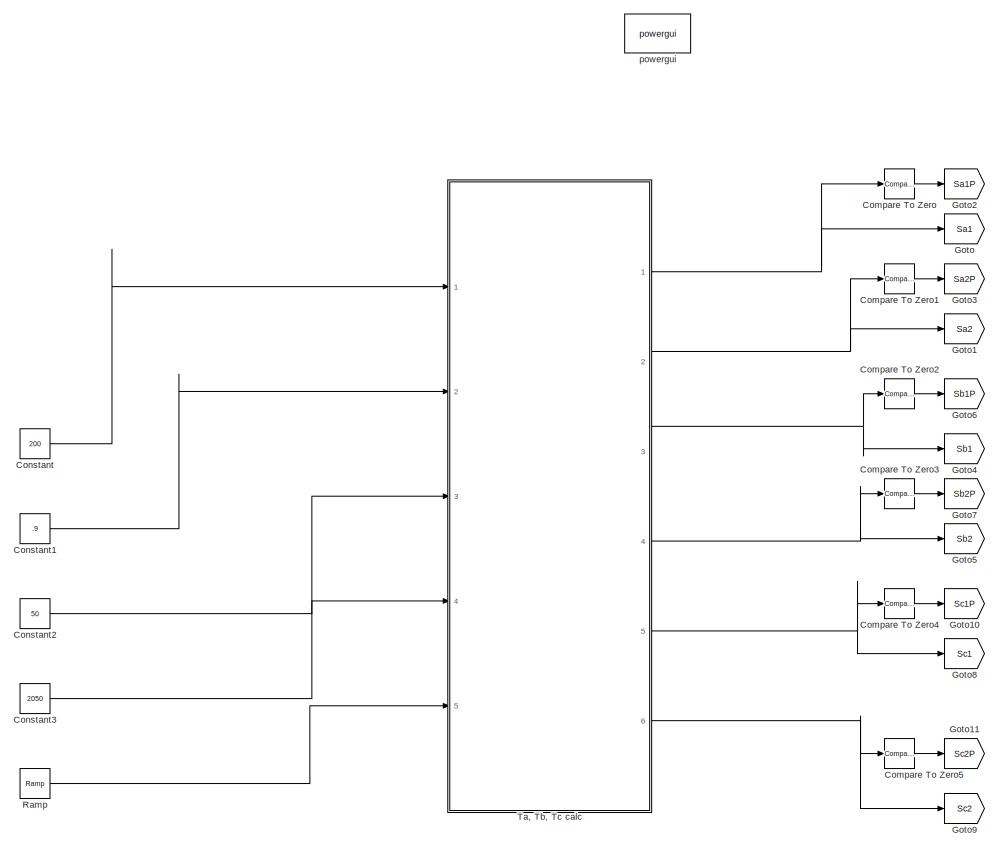
[diagram: root canvas - part 1/5, top left region]
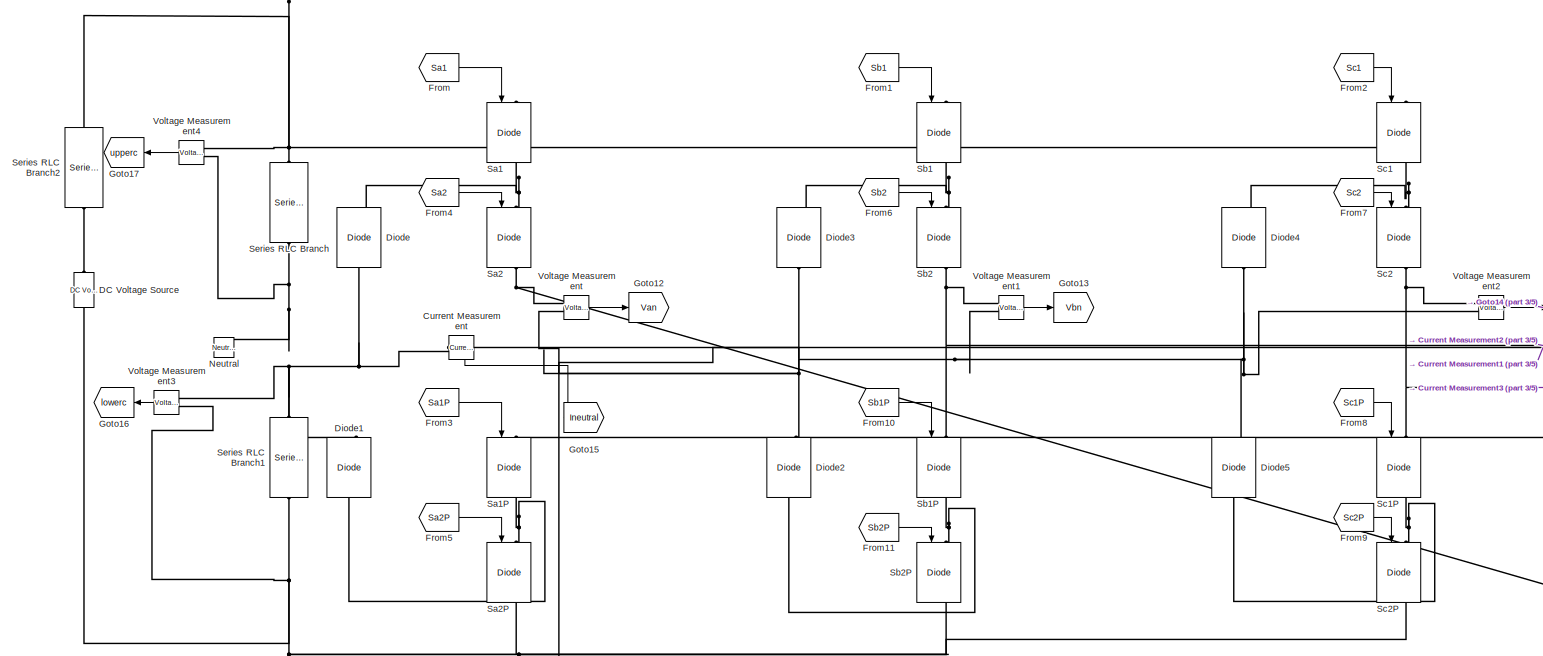
[diagram: root canvas - part 2/5, central region]
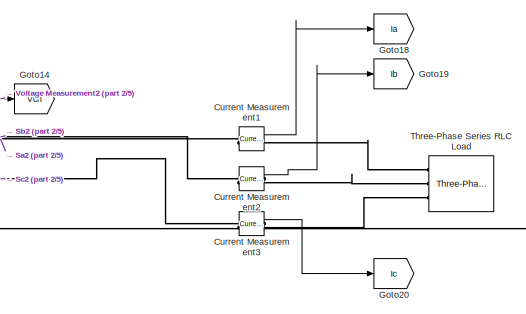
[diagram: root canvas - part 3/5, middle right region]
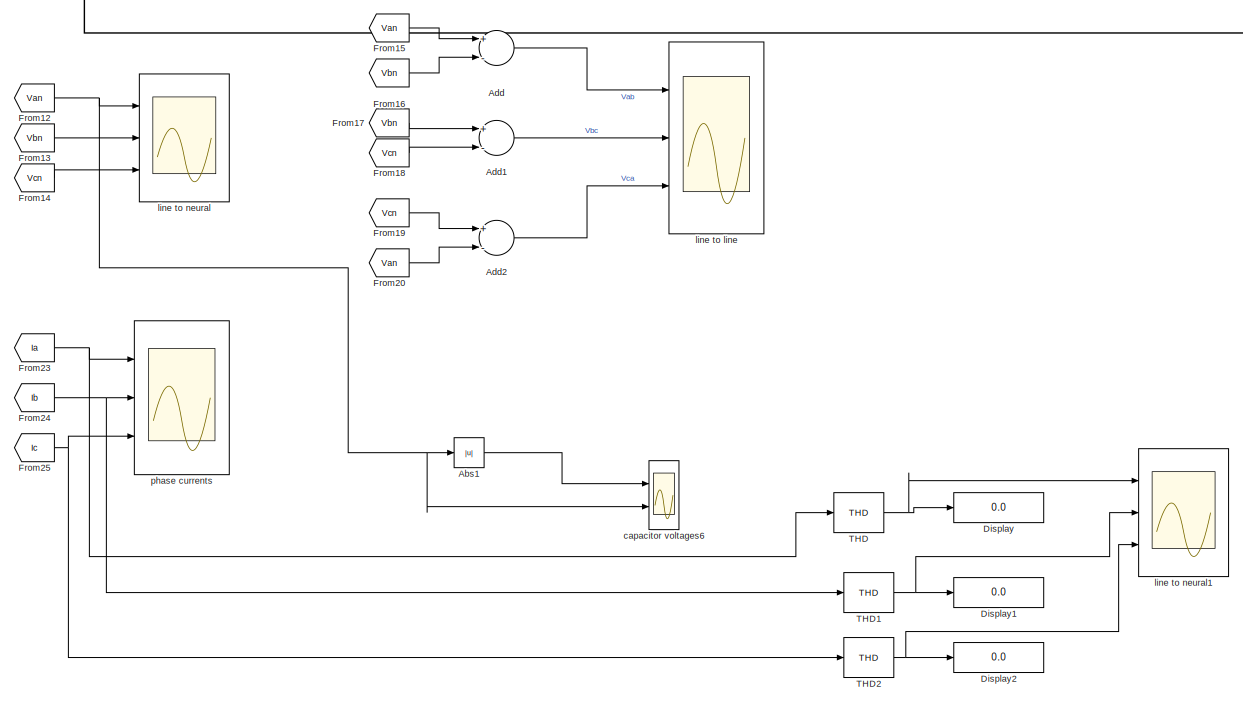
[diagram: root canvas - part 4/5, bottom center region]
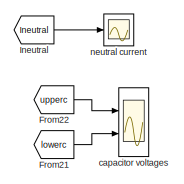
[diagram: root canvas - part 5/5, bottom center region]
MODEL slx_27b21fbd5ff9
KIND model
CONFIG AbsTol = auto
CONFIG FixedStep = auto
CONFIG MaxStep = auto
CONFIG MinStep = auto
CONFIG RelTol = 1e-3
CONFIG SampleTimeConstraint = Unconstrained
CONFIG Solver = VariableStepAuto
CONFIG SolverMode = Auto
CONFIG SolverName = VariableStepAuto
CONFIG StartTime = 0.0
CONFIG StopTime = 0.1
BLOCK [Abs] Abs1
  SaturateOnIntegerOverflow = off
BLOCK [Sum] Add
  InputSameDT = off
  Inputs = +-
  OutDataTypeStr = Inherit: Inherit via internal rule
  Ports = [2, 1]
  SaturateOnIntegerOverflow = off
BLOCK [Sum] Add1
  InputSameDT = off
  Inputs = +-
  OutDataTypeStr = Inherit: Inherit via internal rule
  Ports = [2, 1]
  SaturateOnIntegerOverflow = off
BLOCK [Sum] Add2
  InputSameDT = off
  Inputs = +-
  OutDataTypeStr = Inherit: Inherit via internal rule
  Ports = [2, 1]
  SaturateOnIntegerOverflow = off
BLOCK [Reference] Compare To Zero  REF=simulink/Logic and Bit
Operations/Compare
To Zero
  Ports = [1, 1]
  SourceBlock = simulink/Logic and Bit\nOperations/Compare\nTo Zero
  SourceType = Compare To Zero
BLOCK [Reference] Compare To Zero1  REF=simulink/Logic and Bit
Operations/Compare
To Zero
  Ports = [1, 1]
  SourceBlock = simulink/Logic and Bit\nOperations/Compare\nTo Zero
  SourceType = Compare To Zero
BLOCK [Reference] Compare To Zero2  REF=simulink/Logic and Bit
Operations/Compare
To Zero
  Ports = [1, 1]
  SourceBlock = simulink/Logic and Bit\nOperations/Compare\nTo Zero
  SourceType = Compare To Zero
BLOCK [Reference] Compare To Zero3  REF=simulink/Logic and Bit
Operations/Compare
To Zero
  Ports = [1, 1]
  SourceBlock = simulink/Logic and Bit\nOperations/Compare\nTo Zero
  SourceType = Compare To Zero
BLOCK [Reference] Compare To Zero4  REF=simulink/Logic and Bit
Operations/Compare
To Zero
  Ports = [1, 1]
  SourceBlock = simulink/Logic and Bit\nOperations/Compare\nTo Zero
  SourceType = Compare To Zero
BLOCK [Reference] Compare To Zero5  REF=simulink/Logic and Bit
Operations/Compare
To Zero
  Ports = [1, 1]
  SourceBlock = simulink/Logic and Bit\nOperations/Compare\nTo Zero
  SourceType = Compare To Zero
BLOCK [Constant] Constant
  Value = 200
BLOCK [Constant] Constant1
  Value = .9
BLOCK [Constant] Constant2
  Value = 50
BLOCK [Constant] Constant3
  Value = 2050
  VectorParams1D = off
BLOCK [Reference] Current Measurement  REF=powerlib/Measurements/Current Measurement
  Ports = [0, 1, 0, 0, 0, 1, 1]
  SourceBlock = powerlib/Measurements/Current Measurement
  SourceType = Current Measurement
  UserDataPersistent = on
BLOCK [Reference] Current Measurement1  REF=powerlib/Measurements/Current Measurement
  Ports = [0, 1, 0, 0, 0, 1, 1]
  SourceBlock = powerlib/Measurements/Current Measurement
  SourceType = Current Measurement
  UserDataPersistent = on
BLOCK [Reference] Current Measurement2  REF=powerlib/Measurements/Current Measurement
  Ports = [0, 1, 0, 0, 0, 1, 1]
  SourceBlock = powerlib/Measurements/Current Measurement
  SourceType = Current Measurement
  UserDataPersistent = on
BLOCK [Reference] Current Measurement3  REF=powerlib/Measurements/Current Measurement
  Ports = [0, 1, 0, 0, 0, 1, 1]
  SourceBlock = powerlib/Measurements/Current Measurement
  SourceType = Current Measurement
  UserDataPersistent = on
BLOCK [Reference] DC Voltage Source  REF=powerlib/Electrical
Sources/DC Voltage Source
  Ports = [0, 0, 0, 0, 0, 1, 1]
  SourceBlock = powerlib/Electrical\nSources/DC Voltage Source
  SourceType = DC Voltage Source
BLOCK [Reference] Diode  REF=powerlib/Power
Electronics/Diode
  Ports = [0, 1, 0, 0, 0, 1, 1]
  SourceBlock = powerlib/Power\nElectronics/Diode
  SourceType = Diode
BLOCK [Reference] Diode1  REF=powerlib/Power
Electronics/Diode
  Ports = [0, 1, 0, 0, 0, 1, 1]
  SourceBlock = powerlib/Power\nElectronics/Diode
  SourceType = Diode
BLOCK [Reference] Diode2  REF=powerlib/Power
Electronics/Diode
  Ports = [0, 1, 0, 0, 0, 1, 1]
  SourceBlock = powerlib/Power\nElectronics/Diode
  SourceType = Diode
BLOCK [Reference] Diode3  REF=powerlib/Power
Electronics/Diode
  Ports = [0, 1, 0, 0, 0, 1, 1]
  SourceBlock = powerlib/Power\nElectronics/Diode
  SourceType = Diode
BLOCK [Reference] Diode4  REF=powerlib/Power
Electronics/Diode
  Ports = [0, 1, 0, 0, 0, 1, 1]
  SourceBlock = powerlib/Power\nElectronics/Diode
  SourceType = Diode
BLOCK [Reference] Diode5  REF=powerlib/Power
Electronics/Diode
  Ports = [0, 1, 0, 0, 0, 1, 1]
  SourceBlock = powerlib/Power\nElectronics/Diode
  SourceType = Diode
BLOCK [Display] Display
  Decimation = 1
  Ports = [1]
BLOCK [Display] Display1
  Decimation = 1
  Ports = [1]
BLOCK [Display] Display2
  Decimation = 1
  Ports = [1]
BLOCK [From] From
  GotoTag = Sa1
BLOCK [From] From1
  GotoTag = Sb1
BLOCK [From] From10
  GotoTag = Sb1P
BLOCK [From] From11
  GotoTag = Sb2P
BLOCK [From] From12
  GotoTag = Van
BLOCK [From] From13
  GotoTag = Vbn
BLOCK [From] From14
  GotoTag = Vcn
BLOCK [From] From15
  GotoTag = Van
BLOCK [From] From16
  GotoTag = Vbn
BLOCK [From] From17
  GotoTag = Vbn
BLOCK [From] From18
  GotoTag = Vcn
BLOCK [From] From19
  GotoTag = Vcn
BLOCK [From] From2
  GotoTag = Sc1
BLOCK [From] From20
  GotoTag = Van
BLOCK [From] From21
  GotoTag = lowerc
BLOCK [From] From22
  GotoTag = upperc
BLOCK [From] From23
  GotoTag = Ia
BLOCK [From] From24
  GotoTag = Ib
BLOCK [From] From25
  GotoTag = Ic
BLOCK [From] From3
  GotoTag = Sa1P
BLOCK [From] From4
  GotoTag = Sa2
BLOCK [From] From5
  GotoTag = Sa2P
BLOCK [From] From6
  GotoTag = Sb2
BLOCK [From] From7
  GotoTag = Sc2
BLOCK [From] From8
  GotoTag = Sc1P
BLOCK [From] From9
  GotoTag = Sc2P
BLOCK [Goto] Goto
  GotoTag = Sa1
BLOCK [Goto] Goto1
  GotoTag = Sa2
BLOCK [Goto] Goto10
  GotoTag = Sc1P
BLOCK [Goto] Goto11
  GotoTag = Sc2P
BLOCK [Goto] Goto12
  GotoTag = Van
BLOCK [Goto] Goto13
  GotoTag = Vbn
BLOCK [Goto] Goto14
  GotoTag = Vcn
BLOCK [Goto] Goto15
  GotoTag = Ineutral
BLOCK [Goto] Goto16
  GotoTag = lowerc
BLOCK [Goto] Goto17
  GotoTag = upperc
BLOCK [Goto] Goto18
  GotoTag = Ia
BLOCK [Goto] Goto19
  GotoTag = Ib
BLOCK [Goto] Goto2
  GotoTag = Sa1P
BLOCK [Goto] Goto20
  GotoTag = Ic
BLOCK [Goto] Goto3
  GotoTag = Sa2P
BLOCK [Goto] Goto4
  GotoTag = Sb1
BLOCK [Goto] Goto5
  GotoTag = Sb2
BLOCK [Goto] Goto6
  GotoTag = Sb1P
BLOCK [Goto] Goto7
  GotoTag = Sb2P
BLOCK [Goto] Goto8
  GotoTag = Sc1
BLOCK [Goto] Goto9
  GotoTag = Sc2
BLOCK [From] Ineutral
  GotoTag = Ineutral
BLOCK [Reference] Neutral  REF=powerlib/Elements/Neutral
  AttributesFormatString = node %<NodeNumber>
  Ports = [0, 0, 0, 0, 0, 1]
  SourceBlock = powerlib/Elements/Neutral
  SourceType = Neutral
BLOCK [Reference] Ramp  REF=simulink/Sources/Ramp
  Ports = [0, 1]
  SourceBlock = simulink/Sources/Ramp
  SourceType = Ramp
BLOCK [Reference] Sa1   REF=powerlib/Power
Electronics/IGBT//Diode
  Ports = [1, 1, 0, 0, 0, 1, 1]
  SourceBlock = powerlib/Power\nElectronics/IGBT//Diode
  SourceType = IGBT/Diode
BLOCK [Reference] Sa1P  REF=powerlib/Power
Electronics/IGBT//Diode
  Ports = [1, 1, 0, 0, 0, 1, 1]
  SourceBlock = powerlib/Power\nElectronics/IGBT//Diode
  SourceType = IGBT/Diode
BLOCK [Reference] Sa2  REF=powerlib/Power
Electronics/IGBT//Diode
  Ports = [1, 1, 0, 0, 0, 1, 1]
  SourceBlock = powerlib/Power\nElectronics/IGBT//Diode
  SourceType = IGBT/Diode
BLOCK [Reference] Sa2P  REF=powerlib/Power
Electronics/IGBT//Diode
  Ports = [1, 1, 0, 0, 0, 1, 1]
  SourceBlock = powerlib/Power\nElectronics/IGBT//Diode
  SourceType = IGBT/Diode
BLOCK [Reference] Sb1  REF=powerlib/Power
Electronics/IGBT//Diode
  Ports = [1, 1, 0, 0, 0, 1, 1]
  SourceBlock = powerlib/Power\nElectronics/IGBT//Diode
  SourceType = IGBT/Diode
BLOCK [Reference] Sb1P  REF=powerlib/Power
Electronics/IGBT//Diode
  Ports = [1, 1, 0, 0, 0, 1, 1]
  SourceBlock = powerlib/Power\nElectronics/IGBT//Diode
  SourceType = IGBT/Diode
BLOCK [Reference] Sb2  REF=powerlib/Power
Electronics/IGBT//Diode
  Ports = [1, 1, 0, 0, 0, 1, 1]
  SourceBlock = powerlib/Power\nElectronics/IGBT//Diode
  SourceType = IGBT/Diode
BLOCK [Reference] Sb2P  REF=powerlib/Power
Electronics/IGBT//Diode
  Ports = [1, 1, 0, 0, 0, 1, 1]
  SourceBlock = powerlib/Power\nElectronics/IGBT//Diode
  SourceType = IGBT/Diode
BLOCK [Reference] Sc1  REF=powerlib/Power
Electronics/IGBT//Diode
  Ports = [1, 1, 0, 0, 0, 1, 1]
  SourceBlock = powerlib/Power\nElectronics/IGBT//Diode
  SourceType = IGBT/Diode
BLOCK [Reference] Sc1P  REF=powerlib/Power
Electronics/IGBT//Diode
  Ports = [1, 1, 0, 0, 0, 1, 1]
  SourceBlock = powerlib/Power\nElectronics/IGBT//Diode
  SourceType = IGBT/Diode
BLOCK [Reference] Sc2  REF=powerlib/Power
Electronics/IGBT//Diode
  Ports = [1, 1, 0, 0, 0, 1, 1]
  SourceBlock = powerlib/Power\nElectronics/IGBT//Diode
  SourceType = IGBT/Diode
BLOCK [Reference] Sc2P  REF=powerlib/Power
Electronics/IGBT//Diode
  Ports = [1, 1, 0, 0, 0, 1, 1]
  SourceBlock = powerlib/Power\nElectronics/IGBT//Diode
  SourceType = IGBT/Diode
BLOCK [Reference] Series RLC Branch  REF=powerlib/Elements/Series RLC Branch
  Ports = [0, 0, 0, 0, 0, 1, 1]
  SourceBlock = powerlib/Elements/Series RLC Branch
  SourceType = Series RLC Branch
BLOCK [Reference] Series RLC Branch1  REF=powerlib/Elements/Series RLC Branch
  Ports = [0, 0, 0, 0, 0, 1, 1]
  SourceBlock = powerlib/Elements/Series RLC Branch
  SourceType = Series RLC Branch
BLOCK [Reference] Series RLC Branch2  REF=powerlib/Elements/Series RLC Branch
  Ports = [0, 0, 0, 0, 0, 1, 1]
  SourceBlock = powerlib/Elements/Series RLC Branch
  SourceType = Series RLC Branch
BLOCK [Reference] THD  REF=powerlib_meascontrol/Measurements/THD
  Ports = [1, 1]
  SourceBlock = powerlib_meascontrol/Measurements/THD
  SourceType = THD
BLOCK [Reference] THD1  REF=powerlib_meascontrol/Measurements/THD
  Ports = [1, 1]
  SourceBlock = powerlib_meascontrol/Measurements/THD
  SourceType = THD
BLOCK [Reference] THD2  REF=powerlib_meascontrol/Measurements/THD
  Ports = [1, 1]
  SourceBlock = powerlib_meascontrol/Measurements/THD
  SourceType = THD
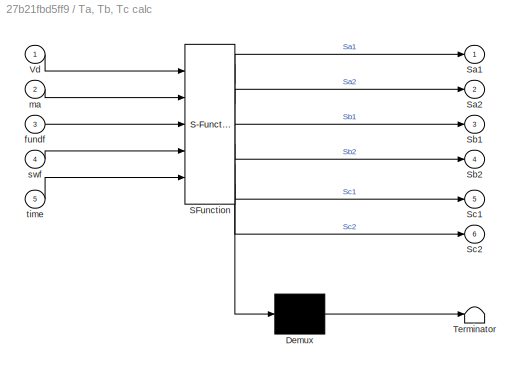
BLOCK [SubSystem] Ta, Tb, Tc calc
  ErrorFcn = Stateflow.Translate.translate
  PermitHierarchicalResolution = ExplicitOnly
  Ports = [5, 6]
  RequestExecContextInheritance = off
  SFBlockType = MATLAB Function
  TreatAsAtomicUnit = on
  Variant = off
BLOCK [Demux] Ta, Tb, Tc calc/ Demux 
  Outputs = 1
  Ports = [1, 1]
BLOCK [S-Function] Ta, Tb, Tc calc/ SFunction 
  EnableBusSupport = on
  FunctionName = sf_sfun
  PortCounts = [5 7]
  Ports = [5, 7]
  SFunctionDeploymentMode = off
  Tag = Stateflow S-Function threelevel_evenorderel_SVPWM 1
BLOCK [Terminator] Ta, Tb, Tc calc/ Terminator 
BLOCK [Outport] Ta, Tb, Tc calc/Sa1
  IconDisplay = Port number
BLOCK [Outport] Ta, Tb, Tc calc/Sa2
  IconDisplay = Port number
  Port = 2
BLOCK [Outport] Ta, Tb, Tc calc/Sb1
  IconDisplay = Port number
  Port = 3
BLOCK [Outport] Ta, Tb, Tc calc/Sb2
  IconDisplay = Port number
  Port = 4
BLOCK [Outport] Ta, Tb, Tc calc/Sc1
  IconDisplay = Port number
  Port = 5
BLOCK [Outport] Ta, Tb, Tc calc/Sc2
  IconDisplay = Port number
  Port = 6
BLOCK [Inport] Ta, Tb, Tc calc/Vd
  IconDisplay = Port number
BLOCK [Inport] Ta, Tb, Tc calc/fundf
  IconDisplay = Port number
  Port = 3
BLOCK [Inport] Ta, Tb, Tc calc/ma
  IconDisplay = Port number
  Port = 2
BLOCK [Inport] Ta, Tb, Tc calc/swf
  IconDisplay = Port number
  Port = 4
BLOCK [Inport] Ta, Tb, Tc calc/time
  IconDisplay = Port number
  Port = 5
BLOCK [Reference] Three-Phase Series RLC Load  REF=powerlib/Elements/Three-Phase
Series RLC Load
  AttributesFormatString = \n
  Ports = [0, 0, 0, 0, 0, 3]
  SourceBlock = powerlib/Elements/Three-Phase\nSeries RLC Load
  SourceType = Three-Phase Series RLC Load
BLOCK [Reference] Voltage Measurement  REF=powerlib/Measurements/Voltage Measurement
  Ports = [0, 1, 0, 0, 0, 2]
  SourceBlock = powerlib/Measurements/Voltage Measurement
  SourceType = Voltage Measurement
  UserDataPersistent = on
BLOCK [Reference] Voltage Measurement1  REF=powerlib/Measurements/Voltage Measurement
  Ports = [0, 1, 0, 0, 0, 2]
  SourceBlock = powerlib/Measurements/Voltage Measurement
  SourceType = Voltage Measurement
  UserDataPersistent = on
BLOCK [Reference] Voltage Measurement2  REF=powerlib/Measurements/Voltage Measurement
  Ports = [0, 1, 0, 0, 0, 2]
  SourceBlock = powerlib/Measurements/Voltage Measurement
  SourceType = Voltage Measurement
  UserDataPersistent = on
BLOCK [Reference] Voltage Measurement3  REF=powerlib/Measurements/Voltage Measurement
  Ports = [0, 1, 0, 0, 0, 2]
  SourceBlock = powerlib/Measurements/Voltage Measurement
  SourceType = Voltage Measurement
  UserDataPersistent = on
BLOCK [Reference] Voltage Measurement4  REF=powerlib/Measurements/Voltage Measurement
  Ports = [0, 1, 0, 0, 0, 2]
  SourceBlock = powerlib/Measurements/Voltage Measurement
  SourceType = Voltage Measurement
  UserDataPersistent = on
BLOCK [Scope] capacitor voltages
  NumInputPorts = 2
  Ports = [2]
  ScopeSpecificationString = Simulink.scopes.TimeScopeBlockCfg('CurrentConfiguration', extmgr.ConfigurationSet(extmgr.Configuration('Core','General UI',true),extmgr.Configuration('Core','Source UI',true),extmgr.Configuration('Sources','WiredSimulink',true,'DataLoggingVariableName','ScopeData2'),extmgr.Configuration('Visuals','Time Domain',true,'SerializedDisplays',{struct('MinYLimReal','267.25143','MaxYLimReal','272.58468','Y...<+2095ch>
BLOCK [Scope] capacitor voltages6
  NumInputPorts = 2
  Ports = [2]
  ScopeSpecificationString = Simulink.scopes.TimeScopeBlockCfg('CurrentConfiguration', extmgr.ConfigurationSet(extmgr.Configuration('Core','General UI',true),extmgr.Configuration('Core','Source UI',true),extmgr.Configuration('Sources','WiredSimulink',true,'DataLoggingVariableName','ScopeData7'),extmgr.Configuration('Visuals','Time Domain',true,'SerializedDisplays',{struct('MinYLimReal','-33.78845','MaxYLimReal','304.09604','Y...<+2043ch>
BLOCK [Scope] line to line
  NumInputPorts = 3
  Ports = [3]
  ScopeSpecificationString = Simulink.scopes.TimeScopeBlockCfg('CurrentConfiguration', extmgr.ConfigurationSet(extmgr.Configuration('Core','General UI',true),extmgr.Configuration('Core','Source UI',true),extmgr.Configuration('Sources','WiredSimulink',true,'DataLogging',true,'DataLoggingVariableName','linetoline'),extmgr.Configuration('Visuals','Time Domain',true,'SerializedDisplays',{struct('MinYLimReal','-674.99697','MaxYLim...<+3106ch>
BLOCK [Scope] line to neural
  NumInputPorts = 3
  Ports = [3]
  ScopeSpecificationString = Simulink.scopes.TimeScopeBlockCfg('CurrentConfiguration', extmgr.ConfigurationSet(extmgr.Configuration('Core','General UI',true),extmgr.Configuration('Core','Source UI',true),extmgr.Configuration('Sources','WiredSimulink',true,'DataLoggingVariableName','ScopeData1'),extmgr.Configuration('Visuals','Time Domain',true,'SerializedDisplays',{struct('MinYLimReal','-338.29123','MaxYLimReal','337.81779','...<+2798ch>
BLOCK [Scope] line to neural1
  NumInputPorts = 3
  Ports = [3]
  ScopeSpecificationString = Simulink.scopes.TimeScopeBlockCfg('CurrentConfiguration', extmgr.ConfigurationSet(extmgr.Configuration('Core','General UI',true),extmgr.Configuration('Core','Source UI',true),extmgr.Configuration('Sources','WiredSimulink',true,'DataLoggingVariableName','ScopeData9'),extmgr.Configuration('Visuals','Time Domain',true,'SerializedDisplays',{struct('MinYLimReal','0.0122096','MaxYLimReal','0.0122113','Y...<+2725ch>
BLOCK [Scope] neutral current
  Ports = [1]
  ScopeSpecificationString = Simulink.scopes.TimeScopeBlockCfg('CurrentConfiguration', extmgr.ConfigurationSet(extmgr.Configuration('Core','General UI',true),extmgr.Configuration('Core','Source UI',true),extmgr.Configuration('Sources','WiredSimulink',true,'DataLoggingVariableName','ScopeData1'),extmgr.Configuration('Visuals','Time Domain',true,'SerializedDisplays',{struct('MinYLimReal','-4.08053','MaxYLimReal','4.08095','YLab...<+1476ch>
BLOCK [Scope] phase currents
  NumInputPorts = 3
  Ports = [3]
  ScopeSpecificationString = Simulink.scopes.TimeScopeBlockCfg('CurrentConfiguration', extmgr.ConfigurationSet(extmgr.Configuration('Core','General UI',true),extmgr.Configuration('Core','Source UI',true),extmgr.Configuration('Sources','WiredSimulink',true,'DataLoggingVariableName','ScopeData3'),extmgr.Configuration('Visuals','Time Domain',true,'SerializedDisplays',{struct('MinYLimReal','-3.71575','MaxYLimReal','3.08548','YLab...<+3112ch>
BLOCK [Reference] powergui  REF=powerlib/powergui
  Ports = []
  Priority = 1
  SourceBlock = powerlib/powergui
  SourceType = PSB option menu block
  UserDataPersistent = on
LINE Abs1:1 -> capacitor voltages6:1
LINE Add1:1 -> line to line:2
LINE Add2:1 -> line to line:3
LINE Add:1 -> line to line:1
LINE Compare To Zero1:1 -> Goto3:1
LINE Compare To Zero2:1 -> Goto6:1
LINE Compare To Zero3:1 -> Goto7:1
LINE Compare To Zero4:1 -> Goto10:1
LINE Compare To Zero5:1 -> Goto11:1
LINE Compare To Zero:1 -> Goto2:1
LINE Constant1:1 -> Ta, Tb, Tc calc:2
LINE Constant2:1 -> Ta, Tb, Tc calc:3
LINE Constant3:1 -> Ta, Tb, Tc calc:4
LINE Constant:1 -> Ta, Tb, Tc calc:1
LINE Current Measurement1:1 -> Goto18:1
LINE Current Measurement2:1 -> Goto19:1
LINE Current Measurement3:1 -> Goto20:1
LINE Current Measurement:1 -> Goto15:1
LINE From10:1 -> Sb1P:1
LINE From11:1 -> Sb2P:1
NET From12:1 -> Abs1:1, capacitor voltages6:2, line to neural:1
LINE From13:1 -> line to neural:2
LINE From14:1 -> line to neural:3
LINE From15:1 -> Add:1
LINE From16:1 -> Add:2
LINE From17:1 -> Add1:1
LINE From18:1 -> Add1:2
LINE From19:1 -> Add2:1
LINE From1:1 -> Sb1:1
LINE From20:1 -> Add2:2
LINE From21:1 -> capacitor voltages:2
LINE From22:1 -> capacitor voltages:1
NET From23:1 -> THD:1, phase currents:1
NET From24:1 -> THD1:1, phase currents:2
NET From25:1 -> THD2:1, phase currents:3
LINE From2:1 -> Sc1:1
LINE From3:1 -> Sa1P:1
LINE From4:1 -> Sa2:1
LINE From5:1 -> Sa2P:1
LINE From6:1 -> Sb2:1
LINE From7:1 -> Sc2:1
LINE From8:1 -> Sc1P:1
LINE From9:1 -> Sc2P:1
LINE From:1 -> Sa1 :1
LINE Ineutral:1 -> neutral current:1
LINE Ramp:1 -> Ta, Tb, Tc calc:5
NET THD1:1 -> Display1:1, line to neural1:2
NET THD2:1 -> Display2:1, line to neural1:3
NET THD:1 -> Display:1, line to neural1:1
NET Ta, Tb, Tc calc:1 -> Compare To Zero:1, Goto:1
NET Ta, Tb, Tc calc:2 -> Compare To Zero1:1, Goto1:1
NET Ta, Tb, Tc calc:3 -> Compare To Zero2:1, Goto4:1
NET Ta, Tb, Tc calc:4 -> Compare To Zero3:1, Goto5:1
NET Ta, Tb, Tc calc:5 -> Compare To Zero4:1, Goto8:1
NET Ta, Tb, Tc calc:6 -> Compare To Zero5:1, Goto9:1
LINE Voltage Measurement1:1 -> Goto13:1
LINE Voltage Measurement2:1 -> Goto14:1
LINE Voltage Measurement3:1 -> Goto16:1
LINE Voltage Measurement4:1 -> Goto17:1
LINE Voltage Measurement:1 -> Goto12:1
PNET net1: Current Measurement1:LConn1 -- Sa1P:LConn1 -- Sa2:RConn1 -- Voltage Measurement:LConn1
PLINE Current Measurement1:RConn1 -- Three-Phase Series RLC Load:LConn1
PNET net2: Current Measurement2:LConn1 -- Sb1P:LConn1 -- Sb2:RConn1 -- Voltage Measurement1:LConn1
PLINE Current Measurement2:RConn1 -- Three-Phase Series RLC Load:LConn2
PNET net3: Current Measurement3:LConn1 -- Sc1P:LConn1 -- Sc2:RConn1 -- Voltage Measurement2:LConn1
PLINE Current Measurement3:RConn1 -- Three-Phase Series RLC Load:LConn3
PNET net4: Current Measurement:LConn1 -- Diode2:RConn1 -- Diode3:LConn1 -- Diode4:LConn1 -- Diode5:RConn1 -- Voltage Measurement1:LConn2 -- Voltage Measurement2:LConn2 -- Voltage Measurement:LConn2
PNET net5: Current Measurement:RConn1 -- Diode1:RConn1 -- Diode:LConn1 -- Neutral:LConn1 -- Series RLC Branch1:LConn1 -- Series RLC Branch:RConn1 -- Voltage Measurement3:LConn1 -- Voltage Measurement4:LConn2
PNET net6: DC Voltage Source:LConn1 -- Sa2P:RConn1 -- Sb2P:RConn1 -- Sc2P:RConn1 -- Series RLC Branch1:RConn1 -- Voltage Measurement3:LConn2
PLINE DC Voltage Source:RConn1 -- Series RLC Branch2:RConn1
PNET net7: Diode1:LConn1 -- Sa1P:RConn1 -- Sa2P:LConn1
PNET net8: Diode2:LConn1 -- Sb1P:RConn1 -- Sb2P:LConn1
PNET net9: Diode3:RConn1 -- Sb1:RConn1 -- Sb2:LConn1
PNET net10: Diode4:RConn1 -- Sc1:RConn1 -- Sc2:LConn1
PNET net11: Diode5:LConn1 -- Sc1P:RConn1 -- Sc2P:LConn1
PNET net12: Diode:RConn1 -- Sa1 :RConn1 -- Sa2:LConn1
PNET net13: Sa1 :LConn1 -- Sb1:LConn1 -- Sc1:LConn1 -- Series RLC Branch2:LConn1 -- Series RLC Branch:LConn1 -- Voltage Measurement4:LConn1
note: NET lines group one-source signal fan-out (src -> all destinations, sorted); 1:1 wires keep LINE; PNET lines group multi-terminal physical nets as a canonical sorted terminal list (undirected conserving connections); 2-terminal nets keep the pairwise PLINE form
CHART Ta, Tb, Tc calc states=1 transitions=1
  STATE_LABEL 'eML_blk_kernel()'
  STATE_LABEL "SCRIPT:\nfunction [Sa1, Sa2, Sb1, Sb2, Sc1, Sc2] = fcn(Vd,ma,fundf, swf, time)\n% this program works for magnitude of Vref is greater then Vd/3 meaning ma\n% must be greater than 1/sqrt(3). for smaller ma's computation is a bit\n% more tricky therefore it is omitted for simplicity for now. \n%#ok<*NASGU>\nVref = ma*Vd/sqrt(3); %magnitude of Vref\ntheta = 2*pi*fundf*time; %angle of Vref\nangle = mod(theta,...<+3608ch>"
